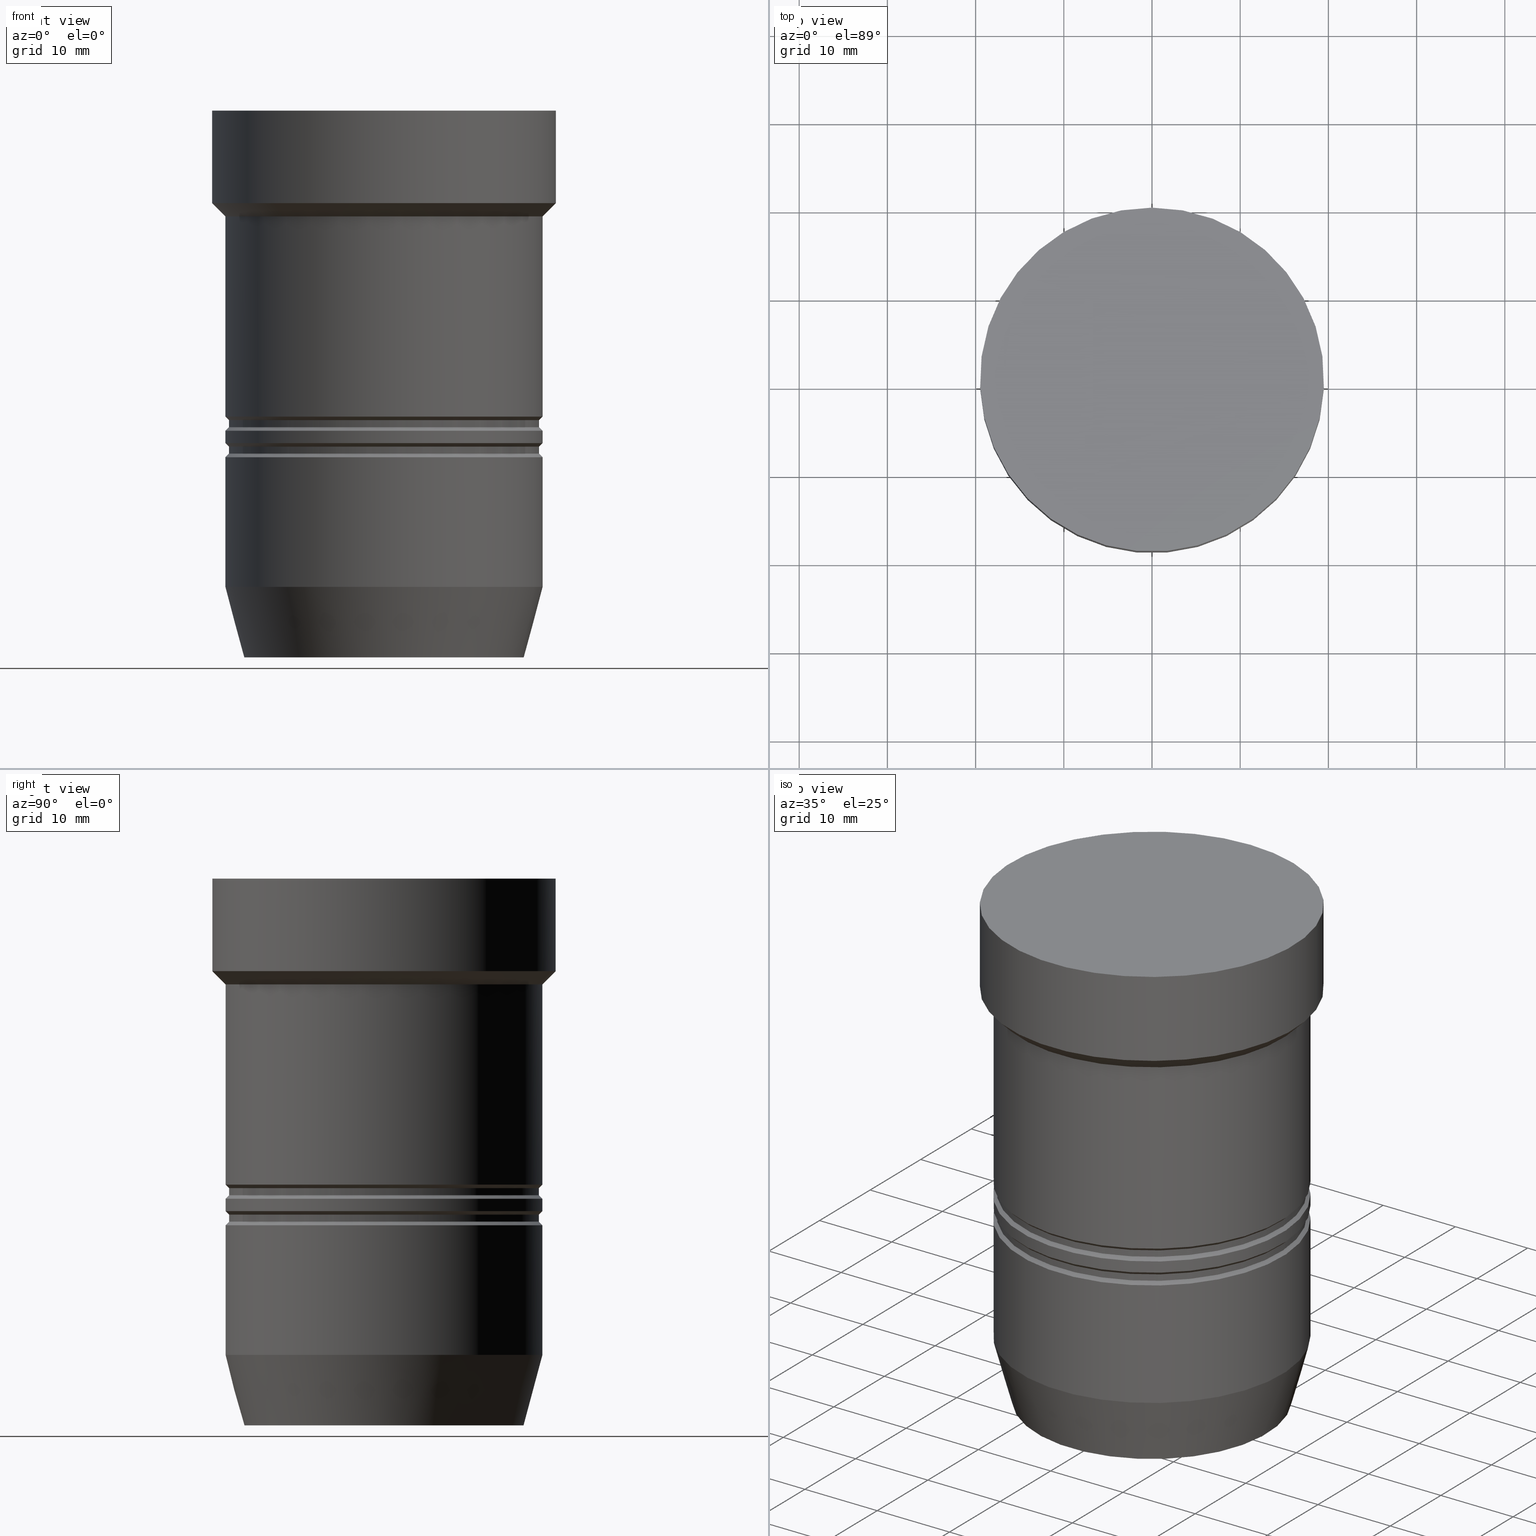
[diagram: canonical four-view strip — front | top / right | iso, engineering-drawing reading convention]
A machine part, canonical four-view strip (front | top / right | iso — engineering-drawing reading convention). The complete STEP part file that produces these views, byte-faithful:
ISO-10303-21;
HEADER;
FILE_DESCRIPTION((''),'1');
FILE_NAME('//Big_tech03/bigt/Translate/11_3D_Field/02_Step_Field/21_CK\X2\30DC30FC30EA30F330B030B730B930C630E0\X0\/24/CK4-MGT6-62.stp','2013-04-09T07:15:53',(''),(''),'Spatial Interop R18','Kubotek KeyCreator V8.5.1 (14335)',' ');
FILE_SCHEMA(('CONFIG_CONTROL_DESIGN'));
ENDSEC;
DATA;
#1=DESIGN_CONTEXT('',#27,'design');
#2=APPLICATION_PROTOCOL_DEFINITION('INTERNATIONAL STANDARD','config_control_design',1994,#27);
#3=PRODUCT_CATEGORY_RELATIONSHIP('NONE','NONE',#28,#29);
#4=DATE_AND_TIME(#30,#31);
#5=DATE_TIME_ROLE('creation_date');
#6=DATE_TIME_ROLE('classification_date');
#7=PERSON_AND_ORGANIZATION_ROLE('creator');
#8=PERSON_AND_ORGANIZATION_ROLE('design_supplier');
#9=PERSON_AND_ORGANIZATION_ROLE('classification_officer');
#10=PERSON_AND_ORGANIZATION_ROLE('design_owner');
#11=APPROVAL_PERSON_ORGANIZATION(#32,#33,#34);
#12=APPROVAL_DATE_TIME(#4,#33);
#13=CC_DESIGN_APPROVAL(#33,(#35,#36,#37));
#14=CC_DESIGN_DATE_AND_TIME_ASSIGNMENT(#4,#5,(#37));
#15=CC_DESIGN_DATE_AND_TIME_ASSIGNMENT(#4,#6,(#35));
#16=CC_DESIGN_PERSON_AND_ORGANIZATION_ASSIGNMENT(#32,#10,(#38));
#17=CC_DESIGN_PERSON_AND_ORGANIZATION_ASSIGNMENT(#32,#7,(#37));
#18=CC_DESIGN_PERSON_AND_ORGANIZATION_ASSIGNMENT(#32,#7,(#36));
#19=CC_DESIGN_PERSON_AND_ORGANIZATION_ASSIGNMENT(#32,#8,(#36));
#20=CC_DESIGN_SECURITY_CLASSIFICATION(#35,(#36));
#21=CC_DESIGN_PERSON_AND_ORGANIZATION_ASSIGNMENT(#32,#9,(#35));
#22=SHAPE_DEFINITION_REPRESENTATION(#39,#40);
#23= (GEOMETRIC_REPRESENTATION_CONTEXT(3)GLOBAL_UNCERTAINTY_ASSIGNED_CONTEXT((#43))GLOBAL_UNIT_ASSIGNED_CONTEXT((#45,#46,#47))REPRESENTATION_CONTEXT('NONE','WORKSPACE'));
#27=APPLICATION_CONTEXT('CONFIGURATION CONTROLLED 3D DESIGNS OF MECHANICAL PARTS AND ASSEMBLIES');
#28=PRODUCT_CATEGORY('part','NONE');
#29=PRODUCT_RELATED_PRODUCT_CATEGORY('detail',' ',(#38));
#30=CALENDAR_DATE(2013,9,3);
#31=LOCAL_TIME(16,15,53.0,#49);
#32=PERSON_AND_ORGANIZATION(#50,#51);
#33=APPROVAL(#52,'SOLID MODEL');
#34=APPROVAL_ROLE('APPROVED');
#35=SECURITY_CLASSIFICATION('','',#53);
#36=PRODUCT_DEFINITION_FORMATION_WITH_SPECIFIED_SOURCE(' ','NONE',#38,.NOT_KNOWN.);
#37=PRODUCT_DEFINITION('NONE','NONE',#36,#1);
#38=PRODUCT('1','1','PART-1-DESC',(#54));
#39=PRODUCT_DEFINITION_SHAPE('NONE','NONE',#37);
#40=ADVANCED_BREP_SHAPE_REPRESENTATION('1',(#55,#56),#23);
#43=UNCERTAINTY_MEASURE_WITH_UNIT(LENGTH_MEASURE(1.0E-006),#45,'','');
#45= (CONVERSION_BASED_UNIT('MILLIMETRE',#59)LENGTH_UNIT()NAMED_UNIT(#62));
#46= (NAMED_UNIT(#64)PLANE_ANGLE_UNIT()SI_UNIT($,.RADIAN.));
#47= (NAMED_UNIT(#64)SOLID_ANGLE_UNIT()SI_UNIT($,.STERADIAN.));
#49=COORDINATED_UNIVERSAL_TIME_OFFSET(9,0,.AHEAD.);
#50=PERSON('','UNSPECIFIED',$,$,$,$);
#51=ORGANIZATION('UNSPECIFIED','UNSPECIFIED','UNSPECIFIED');
#52=APPROVAL_STATUS('approved');
#53=SECURITY_CLASSIFICATION_LEVEL('unclassified');
#54=MECHANICAL_CONTEXT('',#27,'mechanical');
#55=MANIFOLD_SOLID_BREP('1',#70);
#56=AXIS2_PLACEMENT_3D('',#71,#72,#73);
#59=LENGTH_MEASURE_WITH_UNIT(LENGTH_MEASURE(1.0),#74);
#62=DIMENSIONAL_EXPONENTS(1.0,0.0,0.0,0.0,0.0,0.0,0.0);
#64=DIMENSIONAL_EXPONENTS(0.0,0.0,0.0,0.0,0.0,0.0,0.0);
#70=CLOSED_SHELL('',(#75,#76,#77,#78,#79,#80,#81,#82,#83,#84,#85,#86,#87,#88));
#71=CARTESIAN_POINT('',(0.0,0.0,0.0));
#72=DIRECTION('',(0.0,0.0,1.0));
#73=DIRECTION('',(1.0,0.0,0.0));
#74= (NAMED_UNIT(#62)LENGTH_UNIT()SI_UNIT(.MILLI.,.METRE.));
#75=ADVANCED_FACE('',(#90),#91,.T.);
#76=ADVANCED_FACE('',(#92,#93),#94,.T.);
#77=ADVANCED_FACE('',(#95,#96),#97,.T.);
#78=ADVANCED_FACE('',(#98,#99),#100,.T.);
#79=ADVANCED_FACE('',(#101,#102),#103,.T.);
#80=ADVANCED_FACE('',(#104,#105),#106,.T.);
#81=ADVANCED_FACE('',(#107,#108),#109,.T.);
#82=ADVANCED_FACE('',(#110,#111),#112,.T.);
#83=ADVANCED_FACE('',(#113,#114),#115,.T.);
#84=ADVANCED_FACE('',(#116,#117),#118,.T.);
#85=ADVANCED_FACE('',(#119,#120),#121,.T.);
#86=ADVANCED_FACE('',(#122,#123),#124,.T.);
#87=ADVANCED_FACE('',(#125,#126),#127,.T.);
#88=ADVANCED_FACE('',(#128),#129,.T.);
#90=FACE_OUTER_BOUND('',#130,.T.);
#91=PLANE('',#131);
#92=FACE_BOUND('',#132,.T.);
#93=FACE_BOUND('',#133,.T.);
#94=CONICAL_SURFACE('',#134,16.9282032322792,0.261799387022769);
#95=FACE_BOUND('',#135,.T.);
#96=FACE_BOUND('',#136,.T.);
#97=CYLINDRICAL_SURFACE('',#137,18.0);
#98=FACE_BOUND('',#138,.T.);
#99=FACE_BOUND('',#139,.T.);
#100=CONICAL_SURFACE('',#140,17.8,0.785398163397448);
#101=FACE_BOUND('',#141,.T.);
#102=FACE_BOUND('',#142,.T.);
#103=CYLINDRICAL_SURFACE('',#143,17.6);
#104=FACE_BOUND('',#144,.T.);
#105=FACE_BOUND('',#145,.T.);
#106=CONICAL_SURFACE('',#146,17.8,0.785398163397448);
#107=FACE_BOUND('',#147,.T.);
#108=FACE_BOUND('',#148,.T.);
#109=CYLINDRICAL_SURFACE('',#149,18.0);
#110=FACE_BOUND('',#150,.T.);
#111=FACE_BOUND('',#151,.T.);
#112=CONICAL_SURFACE('',#152,17.8,0.785398163397448);
#113=FACE_BOUND('',#153,.T.);
#114=FACE_BOUND('',#154,.T.);
#115=CYLINDRICAL_SURFACE('',#155,17.6);
#116=FACE_BOUND('',#156,.T.);
#117=FACE_BOUND('',#157,.T.);
#118=CONICAL_SURFACE('',#158,17.8,0.785398163397448);
#119=FACE_BOUND('',#159,.T.);
#120=FACE_BOUND('',#160,.T.);
#121=CYLINDRICAL_SURFACE('',#161,18.0);
#122=FACE_BOUND('',#162,.T.);
#123=FACE_BOUND('',#163,.T.);
#124=CONICAL_SURFACE('',#164,18.75,0.785398163397448);
#125=FACE_BOUND('',#165,.T.);
#126=FACE_BOUND('',#166,.T.);
#127=CYLINDRICAL_SURFACE('',#167,19.5);
#128=FACE_OUTER_BOUND('',#168,.T.);
#129=PLANE('',#169);
#130=EDGE_LOOP('',(#170));
#131=AXIS2_PLACEMENT_3D('',#171,#172,#173);
#132=EDGE_LOOP('',(#174));
#133=EDGE_LOOP('',(#175));
#134=AXIS2_PLACEMENT_3D('',#176,#177,#178);
#135=EDGE_LOOP('',(#179));
#136=EDGE_LOOP('',(#180));
#137=AXIS2_PLACEMENT_3D('',#181,#182,#183);
#138=EDGE_LOOP('',(#184));
#139=EDGE_LOOP('',(#185));
#140=AXIS2_PLACEMENT_3D('',#186,#187,#188);
#141=EDGE_LOOP('',(#189));
#142=EDGE_LOOP('',(#190));
#143=AXIS2_PLACEMENT_3D('',#191,#192,#193);
#144=EDGE_LOOP('',(#194));
#145=EDGE_LOOP('',(#195));
#146=AXIS2_PLACEMENT_3D('',#196,#197,#198);
#147=EDGE_LOOP('',(#199));
#148=EDGE_LOOP('',(#200));
#149=AXIS2_PLACEMENT_3D('',#201,#202,#203);
#150=EDGE_LOOP('',(#204));
#151=EDGE_LOOP('',(#205));
#152=AXIS2_PLACEMENT_3D('',#206,#207,#208);
#153=EDGE_LOOP('',(#209));
#154=EDGE_LOOP('',(#210));
#155=AXIS2_PLACEMENT_3D('',#211,#212,#213);
#156=EDGE_LOOP('',(#214));
#157=EDGE_LOOP('',(#215));
#158=AXIS2_PLACEMENT_3D('',#216,#217,#218);
#159=EDGE_LOOP('',(#219));
#160=EDGE_LOOP('',(#220));
#161=AXIS2_PLACEMENT_3D('',#221,#222,#223);
#162=EDGE_LOOP('',(#224));
#163=EDGE_LOOP('',(#225));
#164=AXIS2_PLACEMENT_3D('',#226,#227,#228);
#165=EDGE_LOOP('',(#229));
#166=EDGE_LOOP('',(#230));
#167=AXIS2_PLACEMENT_3D('',#231,#232,#233);
#168=EDGE_LOOP('',(#234));
#169=AXIS2_PLACEMENT_3D('',#235,#236,#237);
#170=ORIENTED_EDGE('',*,*,#238,.F.);
#171=CARTESIAN_POINT('',(3.7964050773568E-015,7.92820323227918,-62.0));
#172=DIRECTION('',(6.12323399573677E-017,1.22464679914735E-016,-1.0));
#173=DIRECTION('',(1.23259516440783E-032,-1.0,-1.22464679914735E-016));
#174=ORIENTED_EDGE('',*,*,#239,.F.);
#175=ORIENTED_EDGE('',*,*,#238,.T.);
#176=CARTESIAN_POINT('',(3.55147571722457E-015,7.10295143444915E-015,-57.9999999950557));
#177=DIRECTION('',(-6.12323399573677E-017,-1.22464679914735E-016,1.0));
#178=DIRECTION('',(-1.23259516440783E-032,1.0,1.22464679914735E-016));
#179=ORIENTED_EDGE('',*,*,#240,.F.);
#180=ORIENTED_EDGE('',*,*,#239,.T.);
#181=CARTESIAN_POINT('',(2.85648865870845E-015,5.7129773174169E-015,-46.6499999950557));
#182=DIRECTION('',(6.12323399573677E-017,1.22464679914735E-016,-1.0));
#183=DIRECTION('',(-1.23259516440783E-032,1.0,1.22464679914735E-016));
#184=ORIENTED_EDGE('',*,*,#241,.F.);
#185=ORIENTED_EDGE('',*,*,#240,.T.);
#186=CARTESIAN_POINT('',(2.39418449233308E-015,4.78836898466615E-015,-39.1));
#187=DIRECTION('',(6.12323399573676E-017,1.22464679914735E-016,-1.0));
#188=DIRECTION('',(-1.23259516440783E-032,1.0,1.22464679914735E-016));
#189=ORIENTED_EDGE('',*,*,#242,.F.);
#190=ORIENTED_EDGE('',*,*,#241,.T.);
#191=CARTESIAN_POINT('',(2.35744508835865E-015,4.71489017671731E-015,-38.5));
#192=DIRECTION('',(6.12323399573677E-017,1.22464679914735E-016,-1.0));
#193=DIRECTION('',(-1.23259516440783E-032,1.0,1.22464679914735E-016));
#194=ORIENTED_EDGE('',*,*,#243,.F.);
#195=ORIENTED_EDGE('',*,*,#242,.T.);
#196=CARTESIAN_POINT('',(2.32070568438423E-015,4.64141136876847E-015,-37.9));
#197=DIRECTION('',(-6.12323399573676E-017,-1.22464679914735E-016,1.0));
#198=DIRECTION('',(-1.23259516440783E-032,1.0,1.22464679914735E-016));
#199=ORIENTED_EDGE('',*,*,#244,.F.);
#200=ORIENTED_EDGE('',*,*,#243,.T.);
#201=CARTESIAN_POINT('',(2.2655965784226E-015,4.53119315684521E-015,-37.0));
#202=DIRECTION('',(6.12323399573677E-017,1.22464679914735E-016,-1.0));
#203=DIRECTION('',(-1.23259516440783E-032,1.0,1.22464679914735E-016));
#204=ORIENTED_EDGE('',*,*,#245,.F.);
#205=ORIENTED_EDGE('',*,*,#244,.T.);
#206=CARTESIAN_POINT('',(2.21048747246097E-015,4.42097494492194E-015,-36.1));
#207=DIRECTION('',(6.12323399573676E-017,1.22464679914735E-016,-1.0));
#208=DIRECTION('',(-1.23259516440783E-032,1.0,1.22464679914735E-016));
#209=ORIENTED_EDGE('',*,*,#246,.F.);
#210=ORIENTED_EDGE('',*,*,#245,.T.);
#211=CARTESIAN_POINT('',(2.17374806848655E-015,4.3474961369731E-015,-35.5));
#212=DIRECTION('',(6.12323399573677E-017,1.22464679914735E-016,-1.0));
#213=DIRECTION('',(-1.23259516440783E-032,1.0,1.22464679914735E-016));
#214=ORIENTED_EDGE('',*,*,#247,.F.);
#215=ORIENTED_EDGE('',*,*,#246,.T.);
#216=CARTESIAN_POINT('',(2.13700866451213E-015,4.27401732902426E-015,-34.9));
#217=DIRECTION('',(-6.12323399573676E-017,-1.22464679914735E-016,1.0));
#218=DIRECTION('',(-1.23259516440783E-032,1.0,1.22464679914735E-016));
#219=ORIENTED_EDGE('',*,*,#248,.F.);
#220=ORIENTED_EDGE('',*,*,#247,.T.);
#221=CARTESIAN_POINT('',(1.42977513800453E-015,2.85955027600907E-015,-23.35));
#222=DIRECTION('',(6.12323399573677E-017,1.22464679914735E-016,-1.0));
#223=DIRECTION('',(-1.23259516440783E-032,1.0,1.22464679914735E-016));
#224=ORIENTED_EDGE('',*,*,#249,.F.);
#225=ORIENTED_EDGE('',*,*,#248,.T.);
#226=CARTESIAN_POINT('',(6.88863824520386E-016,1.37772764904077E-015,-11.25));
#227=DIRECTION('',(-6.12323399573677E-017,-1.22464679914735E-016,1.0));
#228=DIRECTION('',(-1.23259516440783E-032,1.0,1.22464679914735E-016));
#229=ORIENTED_EDGE('',*,*,#250,.F.);
#230=ORIENTED_EDGE('',*,*,#249,.T.);
#231=CARTESIAN_POINT('',(3.2146978477618E-016,6.4293956955236E-016,-5.25));
#232=DIRECTION('',(6.12323399573677E-017,1.22464679914735E-016,-1.0));
#233=DIRECTION('',(-1.23259516440783E-032,1.0,1.22464679914735E-016));
#234=ORIENTED_EDGE('',*,*,#250,.T.);
#235=CARTESIAN_POINT('',(-1.20178028529764E-031,9.75,1.19403062916867E-015));
#236=DIRECTION('',(-6.12323399573677E-017,-1.22464679914735E-016,1.0));
#237=DIRECTION('',(-1.23259516440783E-032,1.0,1.22464679914735E-016));
#238=EDGE_CURVE('',#251,#251,#252,.T.);
#239=EDGE_CURVE('',#253,#253,#254,.T.);
#240=EDGE_CURVE('',#255,#255,#256,.T.);
#241=EDGE_CURVE('',#257,#257,#258,.T.);
#242=EDGE_CURVE('',#259,#259,#260,.T.);
#243=EDGE_CURVE('',#261,#261,#262,.T.);
#244=EDGE_CURVE('',#263,#263,#264,.T.);
#245=EDGE_CURVE('',#265,#265,#266,.T.);
#246=EDGE_CURVE('',#267,#267,#268,.T.);
#247=EDGE_CURVE('',#269,#269,#270,.T.);
#248=EDGE_CURVE('',#271,#271,#272,.T.);
#249=EDGE_CURVE('',#273,#273,#274,.T.);
#250=EDGE_CURVE('',#275,#275,#276,.T.);
#251=VERTEX_POINT('',#277);
#252=CIRCLE('',#278,15.8564064645583);
#253=VERTEX_POINT('',#279);
#254=CIRCLE('',#280,18.0);
#255=VERTEX_POINT('',#281);
#256=CIRCLE('',#282,18.0);
#257=VERTEX_POINT('',#283);
#258=CIRCLE('',#284,17.6);
#259=VERTEX_POINT('',#285);
#260=CIRCLE('',#286,17.6);
#261=VERTEX_POINT('',#287);
#262=CIRCLE('',#288,18.0);
#263=VERTEX_POINT('',#289);
#264=CIRCLE('',#290,18.0);
#265=VERTEX_POINT('',#291);
#266=CIRCLE('',#292,17.6);
#267=VERTEX_POINT('',#293);
#268=CIRCLE('',#294,17.6);
#269=VERTEX_POINT('',#295);
#270=CIRCLE('',#296,18.0);
#271=VERTEX_POINT('',#297);
#272=CIRCLE('',#298,18.0);
#273=VERTEX_POINT('',#299);
#274=CIRCLE('',#300,19.5);
#275=VERTEX_POINT('',#301);
#276=CIRCLE('',#302,19.5);
#277=CARTESIAN_POINT('',(3.7964050773568E-015,15.8564064645584,-62.0));
#278=AXIS2_PLACEMENT_3D('',#303,#304,#305);
#279=CARTESIAN_POINT('',(3.30654635709235E-015,18.0,-53.9999999901114));
#280=AXIS2_PLACEMENT_3D('',#306,#307,#308);
#281=CARTESIAN_POINT('',(2.40643096032455E-015,18.0,-39.3));
#282=AXIS2_PLACEMENT_3D('',#309,#310,#311);
#283=CARTESIAN_POINT('',(2.3819380243416E-015,17.6,-38.9));
#284=AXIS2_PLACEMENT_3D('',#312,#313,#314);
#285=CARTESIAN_POINT('',(2.33295215237571E-015,17.6,-38.1));
#286=AXIS2_PLACEMENT_3D('',#315,#316,#317);
#287=CARTESIAN_POINT('',(2.30845921639276E-015,18.0,-37.7));
#288=AXIS2_PLACEMENT_3D('',#318,#319,#320);
#289=CARTESIAN_POINT('',(2.22273394045245E-015,18.0,-36.3));
#290=AXIS2_PLACEMENT_3D('',#321,#322,#323);
#291=CARTESIAN_POINT('',(2.1982410044695E-015,17.6,-35.9));
#292=AXIS2_PLACEMENT_3D('',#324,#325,#326);
#293=CARTESIAN_POINT('',(2.1492551325036E-015,17.6,-35.1));
#294=AXIS2_PLACEMENT_3D('',#327,#328,#329);
#295=CARTESIAN_POINT('',(2.12476219652066E-015,18.0,-34.7));
#296=AXIS2_PLACEMENT_3D('',#330,#331,#332);
#297=CARTESIAN_POINT('',(7.34788079488412E-016,18.0,-12.0));
#298=AXIS2_PLACEMENT_3D('',#333,#334,#335);
#299=CARTESIAN_POINT('',(6.4293956955236E-016,19.5,-10.5));
#300=AXIS2_PLACEMENT_3D('',#336,#337,#338);
#301=CARTESIAN_POINT('',(-2.40356057059527E-031,19.5,2.38806125833734E-015));
#302=AXIS2_PLACEMENT_3D('',#339,#340,#341);
#303=CARTESIAN_POINT('',(3.7964050773568E-015,7.59281015471359E-015,-62.0));
#304=DIRECTION('',(-6.12323399573677E-017,-1.22464679914735E-016,1.0));
#305=DIRECTION('',(-1.23259516440783E-032,1.0,1.22464679914735E-016));
#306=CARTESIAN_POINT('',(3.30654635709235E-015,6.6130927141847E-015,-53.9999999901114));
#307=DIRECTION('',(-6.12323399573677E-017,-1.22464679914735E-016,1.0));
#308=DIRECTION('',(-1.23259516440783E-032,1.0,1.22464679914735E-016));
#309=CARTESIAN_POINT('',(2.40643096032455E-015,4.8128619206491E-015,-39.3));
#310=DIRECTION('',(-6.12323399573677E-017,-1.22464679914735E-016,1.0));
#311=DIRECTION('',(-1.23259516440783E-032,1.0,1.22464679914735E-016));
#312=CARTESIAN_POINT('',(2.3819380243416E-015,4.7638760486832E-015,-38.9));
#313=DIRECTION('',(-6.12323399573677E-017,-1.22464679914735E-016,1.0));
#314=DIRECTION('',(-1.23259516440783E-032,1.0,1.22464679914735E-016));
#315=CARTESIAN_POINT('',(2.33295215237571E-015,4.66590430475142E-015,-38.1));
#316=DIRECTION('',(-6.12323399573677E-017,-1.22464679914735E-016,1.0));
#317=DIRECTION('',(-1.23259516440783E-032,1.0,1.22464679914735E-016));
#318=CARTESIAN_POINT('',(2.30845921639276E-015,4.61691843278552E-015,-37.7));
#319=DIRECTION('',(-6.12323399573677E-017,-1.22464679914735E-016,1.0));
#320=DIRECTION('',(-1.23259516440783E-032,1.0,1.22464679914735E-016));
#321=CARTESIAN_POINT('',(2.22273394045245E-015,4.44546788090489E-015,-36.3));
#322=DIRECTION('',(-6.12323399573677E-017,-1.22464679914735E-016,1.0));
#323=DIRECTION('',(-1.23259516440783E-032,1.0,1.22464679914735E-016));
#324=CARTESIAN_POINT('',(2.1982410044695E-015,4.396482008939E-015,-35.9));
#325=DIRECTION('',(-6.12323399573677E-017,-1.22464679914735E-016,1.0));
#326=DIRECTION('',(-1.23259516440783E-032,1.0,1.22464679914735E-016));
#327=CARTESIAN_POINT('',(2.1492551325036E-015,4.29851026500721E-015,-35.1));
#328=DIRECTION('',(-6.12323399573677E-017,-1.22464679914735E-016,1.0));
#329=DIRECTION('',(-1.23259516440783E-032,1.0,1.22464679914735E-016));
#330=CARTESIAN_POINT('',(2.12476219652066E-015,4.24952439304131E-015,-34.7));
#331=DIRECTION('',(-6.12323399573677E-017,-1.22464679914735E-016,1.0));
#332=DIRECTION('',(-1.23259516440783E-032,1.0,1.22464679914735E-016));
#333=CARTESIAN_POINT('',(7.34788079488412E-016,1.46957615897682E-015,-12.0));
#334=DIRECTION('',(-6.12323399573677E-017,-1.22464679914735E-016,1.0));
#335=DIRECTION('',(-1.23259516440783E-032,1.0,1.22464679914735E-016));
#336=CARTESIAN_POINT('',(6.4293956955236E-016,1.28587913910472E-015,-10.5));
#337=DIRECTION('',(-6.12323399573677E-017,-1.22464679914735E-016,1.0));
#338=DIRECTION('',(-1.23259516440783E-032,1.0,1.22464679914735E-016));
#339=CARTESIAN_POINT('',(0.0,0.0,0.0));
#340=DIRECTION('',(-6.12323399573677E-017,-1.22464679914735E-016,1.0));
#341=DIRECTION('',(-1.23259516440783E-032,1.0,1.22464679914735E-016));
ENDSEC;
END-ISO-10303-21;
